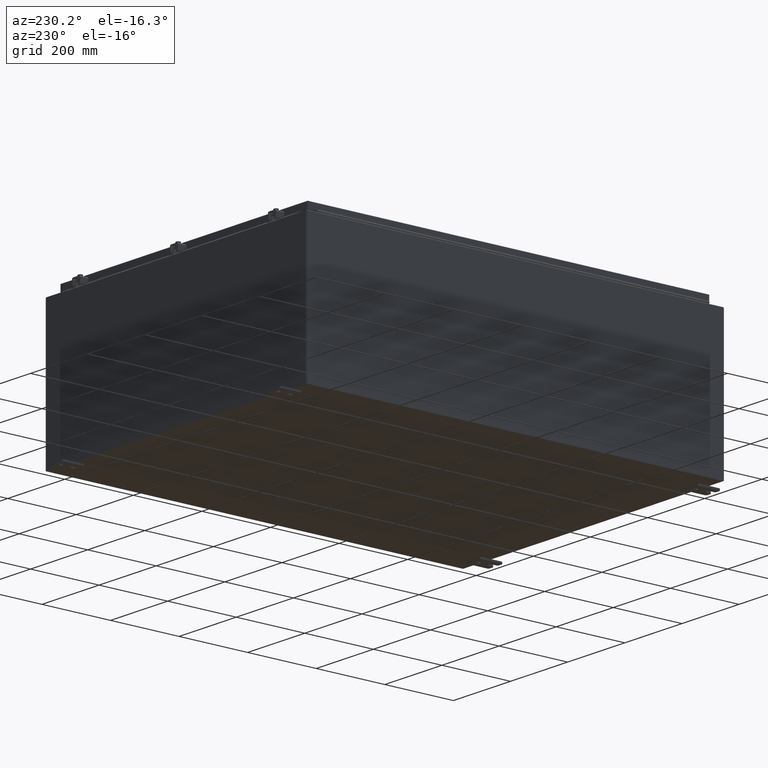
[diagram: clean part render]
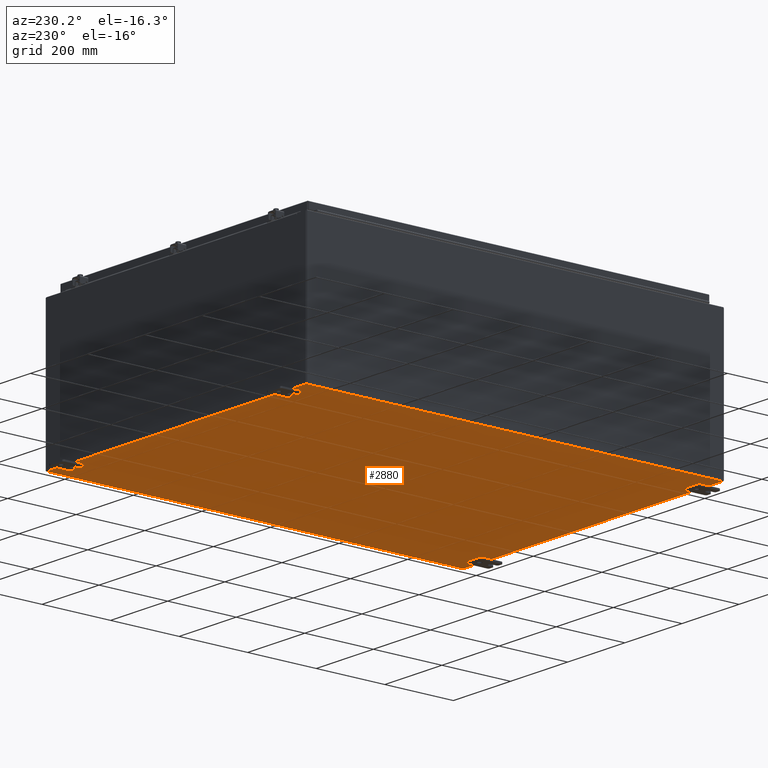
[diagram: same view with one face highlighted and labeled with its STEP entity id]
A machine part, auxiliary view. The second image highlights one B-rep face of the part: STEP entity #2880.
In plain terms, the highlighted planar face has unit normal (0, 0, -1).
Its self-contained STEP definition (entity closure, byte-faithful):
#492 = VERTEX_POINT ( 'NONE', #7306 ) ;
#2148 = CARTESIAN_POINT ( 'NONE',  ( 17.91229999999999500, -23.92530000000000000, -0.07469999999999998900 ) ) ;
#2880 = ADVANCED_FACE ( 'NONE', ( #5888 ), #11380, .T. ) ;
#2997 = DIRECTION ( 'NONE',  ( 0.0000000000000000000, 0.0000000000000000000, -1.000000000000000000 ) ) ;
#4859 = CARTESIAN_POINT ( 'NONE',  ( 17.91229999999999500, 23.92529999999998600, -0.07469999999999688000 ) ) ;
#5888 = FACE_OUTER_BOUND ( 'NONE', #20784, .T. ) ;
#6408 = LINE ( 'NONE', #9641, #15093 ) ;
#7306 = CARTESIAN_POINT ( 'NONE',  ( -17.91230000000000500, -23.92529999999998600, -0.07469999999999996100 ) ) ;
#9305 = CARTESIAN_POINT ( 'NONE',  ( -17.91230000000000500, 23.92529999999998900, -0.07469999999999998900 ) ) ;
#9641 = CARTESIAN_POINT ( 'NONE',  ( -18.00000000000000400, -23.92530000000000400, -0.07469999999999998900 ) ) ;
#11380 = PLANE ( 'NONE',  #32839 ) ;
#13886 = LINE ( 'NONE', #14543, #55279 ) ;
#13991 = DIRECTION ( 'NONE',  ( 1.000000000000000000, 1.214154663850783700E-016, 0.0000000000000000000 ) ) ;
#14111 = LINE ( 'NONE', #49806, #24138 ) ;
#14177 = VERTEX_POINT ( 'NONE', #2148 ) ;
#14543 = CARTESIAN_POINT ( 'NONE',  ( -18.00000000000000400, 23.92530000000000000, -0.07469999999999998900 ) ) ;
#14762 = ORIENTED_EDGE ( 'NONE', *, *, #41404, .T. ) ;
#15093 = VECTOR ( 'NONE', #13991, 39.37007874015748100 ) ;
#16520 = VERTEX_POINT ( 'NONE', #9305 ) ;
#19141 = LINE ( 'NONE', #31735, #29174 ) ;
#20784 = EDGE_LOOP ( 'NONE', ( #40506, #36457, #31613, #14762 ) ) ;
#24138 = VECTOR ( 'NONE', #24224, 39.37007874015748100 ) ;
#24224 = DIRECTION ( 'NONE',  ( -0.0000000000000000000, -1.000000000000000000, -8.208677865577646300E-017 ) ) ;
#26116 = VERTEX_POINT ( 'NONE', #4859 ) ;
#29174 = VECTOR ( 'NONE', #40304, 39.37007874015748100 ) ;
#31613 = ORIENTED_EDGE ( 'NONE', *, *, #52841, .F. ) ;
#31735 = CARTESIAN_POINT ( 'NONE',  ( -17.91230000000000500, -23.92529999999998900, -0.07469999999999996100 ) ) ;
#32829 = EDGE_CURVE ( 'NONE', #492, #16520, #19141, .T. ) ;
#32839 = AXIS2_PLACEMENT_3D ( 'NONE', #49906, #2997, #32947 ) ;
#32947 = DIRECTION ( 'NONE',  ( -1.000000000000000000, 0.0000000000000000000, -0.0000000000000000000 ) ) ;
#36457 = ORIENTED_EDGE ( 'NONE', *, *, #32829, .T. ) ;
#40304 = DIRECTION ( 'NONE',  ( -0.0000000000000000000, 1.000000000000000000, -0.0000000000000000000 ) ) ;
#40506 = ORIENTED_EDGE ( 'NONE', *, *, #47771, .F. ) ;
#41404 = EDGE_CURVE ( 'NONE', #26116, #14177, #14111, .T. ) ;
#44450 = DIRECTION ( 'NONE',  ( -1.000000000000000000, -0.0000000000000000000, -0.0000000000000000000 ) ) ;
#47771 = EDGE_CURVE ( 'NONE', #492, #14177, #6408, .T. ) ;
#49806 = CARTESIAN_POINT ( 'NONE',  ( 17.91229999999999500, 23.92529999999998900, -0.07469999999999688000 ) ) ;
#49906 = CARTESIAN_POINT ( 'NONE',  ( 0.0000000000000000000, 0.0000000000000000000, -0.07469999999999998900 ) ) ;
#52841 = EDGE_CURVE ( 'NONE', #26116, #16520, #13886, .T. ) ;
#55279 = VECTOR ( 'NONE', #44450, 39.37007874015748100 ) ;